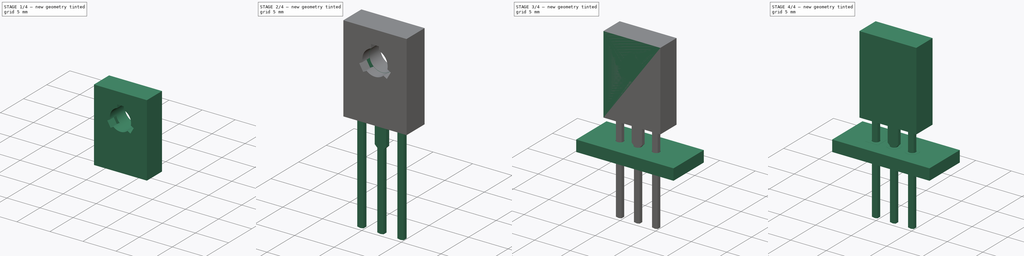
[diagram: build sequence overview — one tinted view per stage of 4, left to right]
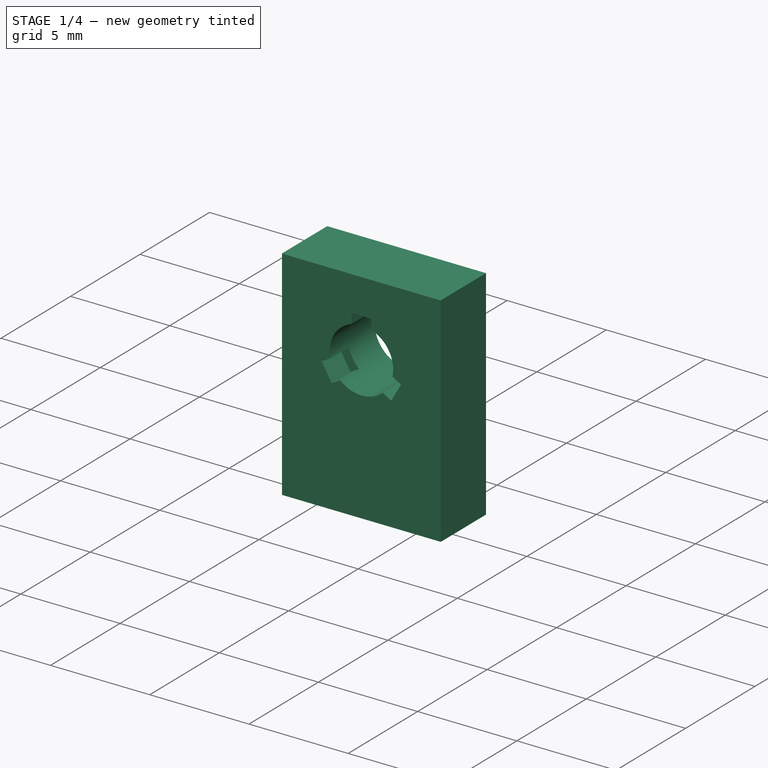
[diagram: stage 1 of 4 — iso view after this stage's code; geometry added in this stage tinted green]
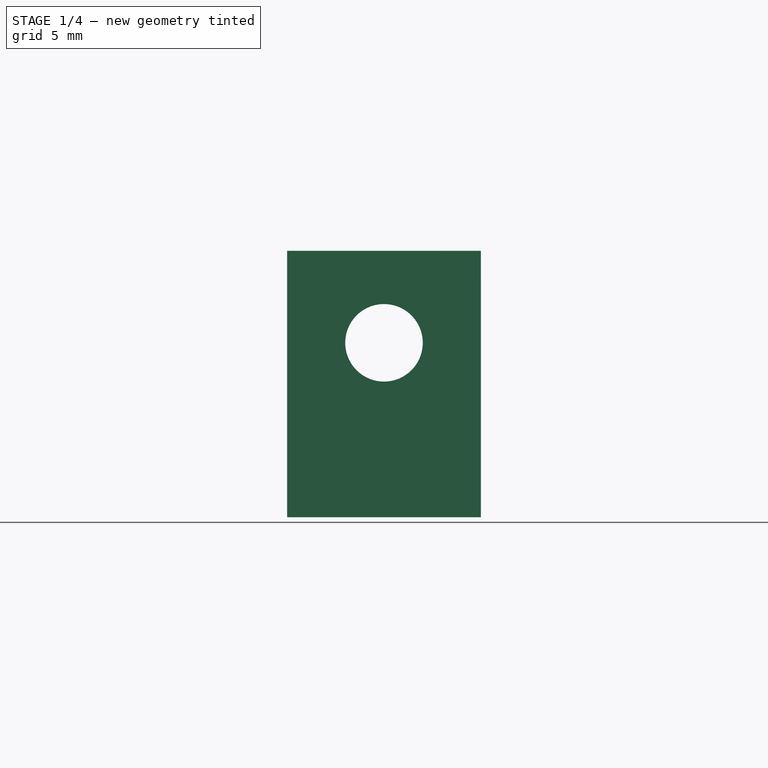
[diagram: stage 1 of 4 — front view after this stage's code; geometry added in this stage tinted green]
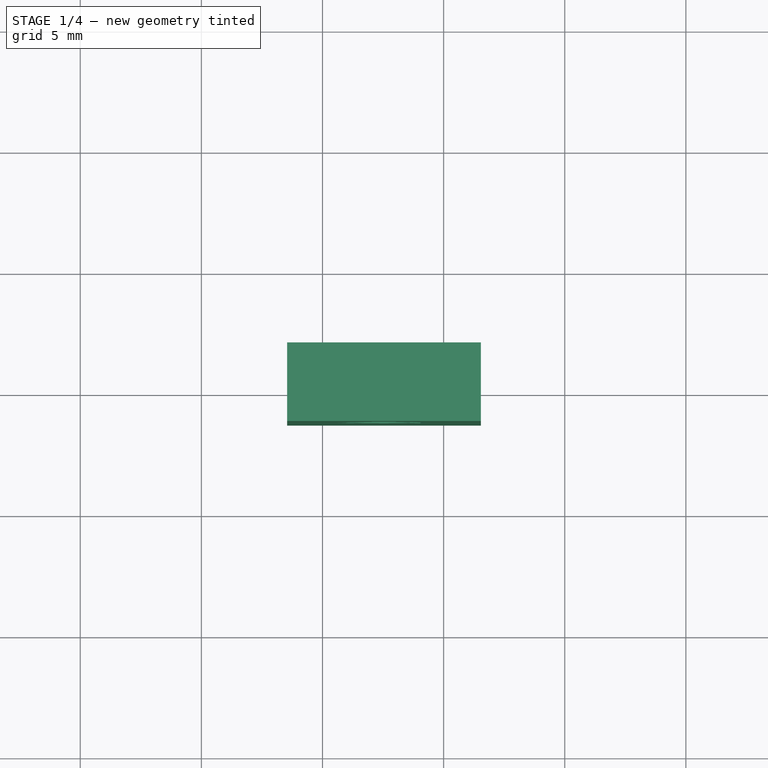
[diagram: stage 1 of 4 — top view after this stage's code; geometry added in this stage tinted green]
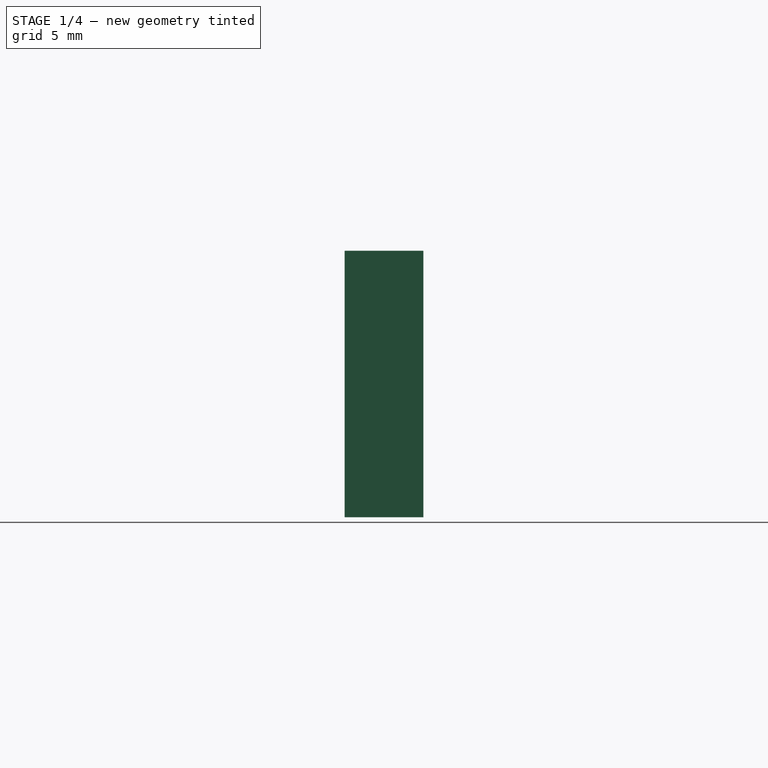
[diagram: stage 1 of 4 — right view after this stage's code; geometry added in this stage tinted green]
FCSTD DOCUMENT  (FreeCAD 0.16R6712 (Git))
Label: TO-126-3_Vertical
License: All rights reserved
LicenseURL: http://en.wikipedia.org/wiki/All_rights_reserved
objects: Part::FeaturePython×7, Sketcher::SketchObject×6, PartDesign::Pad×4, PartDesign::Pocket×3, App::DocumentObjectGroup×1, Part::MultiFuse×1
note: 28 computed .brp shape members not serialized (recipe doc carries the construction recipe); baked Part::Feature solids carry a one-line shape summary decoded from their .brp

FEATURE [Sketcher::SketchObject] Sketch001
  Placement = pos=(2.54,0,0) rot=(0.57735,0.57735,0.57735;2.0944rad)
  expr: Constraints[19] = 3
  expr: Constraints[13] = 2
  sketch-geometry (7):
    g0: LineSegment StartX=0 StartY=3 StartZ=0 EndX=-1.25 EndY=3 EndZ=0
    g1: LineSegment StartX=-1.25 StartY=3 StartZ=0 EndX=-1.25 EndY=13.99 EndZ=0
    g2: LineSegment StartX=-1.25 StartY=13.99 StartZ=0 EndX=-1.24 EndY=14 EndZ=0
    g3: LineSegment StartX=-1.24 StartY=14 StartZ=0 EndX=2 EndY=14 EndZ=0
    g4: LineSegment StartX=2 StartY=14 StartZ=0 EndX=2 EndY=3 EndZ=0
    g5: LineSegment StartX=2 StartY=3 StartZ=0 EndX=0 EndY=3 EndZ=0
    g6: LineSegment [constr] StartX=-1.25 StartY=3 StartZ=0 EndX=2 EndY=3 EndZ=0
  constraints (20):
    c: PointOnObject(g0,g-2)
    c: Coincident(g1,g0)
    c: Vertical(g1)
    c: Coincident(g2,g1)
    c: Horizontal(g3)
    c: Coincident(g4,g3)
    c: Vertical(g4)
    c: Coincident(g5,g4)
    c: Coincident(g5,g0)
    c: Coincident(g6,g0)
    c: Coincident(g6,g4)
    c: Horizontal(g6)
    c: Angle(g1,g2) = 2.35619
    c: DistanceX(g0,g4) = 2
    c: DistanceX(g1,g3) = 3.25
    c: DistanceY(g0,g4) = 0
    c: DistanceY(g0,g3) = 11
    c: Coincident(g2,g3)
    c: DistanceX(g1,g2) = 0.01
    c: DistanceY(g-1,g0) = 3
FEATURE [PartDesign::Pad] Pad001
  Length = 8
  Length2 = 100
  Midplane = true
  Placement = pos=(2.54,0,0) rot=(0.57735,0.57735,0.57735;2.0944rad)
  Sketch = -> Sketch001
  Type = 0
  expr: Length = 8
FEATURE [App::DocumentObjectGroup] TO_126_3_Vertical_fp
  Group = -> [FCrtYd_lines,FFab_lines,Filk_lines,TopPads,BotPads,THPs,newPCB]
FEATURE [Sketcher::SketchObject] Sketch003
  ExternalGeometry = -> [Pad001]
  Placement = pos=(2.54,-1.25,0) rot=(0.57735,0.57735,-0.57735;2.0944rad)
  Support = -> Pad001 [Face2]
  expr: Constraints[34] = 180 - 360 / 3
  sketch-geometry (13):
    g0: LineSegment StartX=-12.2199 StartY=0.5 StartZ=0 EndX=-12.2199 EndY=-0.5 EndZ=0
    g1: LineSegment StartX=-12.2199 StartY=-0.5 StartZ=0 EndX=-11.7199 EndY=-0.5 EndZ=0
    g2: LineSegment StartX=-12.2199 StartY=0.5 StartZ=0 EndX=-11.7199 EndY=0.5 EndZ=0
    g3: LineSegment StartX=-9.87308 StartY=1.56624 StartZ=0 EndX=-9.62308 EndY=1.99926 EndZ=0
    g4: LineSegment StartX=-9.62308 StartY=1.99926 StartZ=0 EndX=-8.75705 EndY=1.49926 EndZ=0
    g5: LineSegment StartX=-8.75705 StartY=1.49926 StartZ=0 EndX=-9.00705 EndY=1.06624 EndZ=0
    g6: LineSegment StartX=-9.00705 StartY=-1.06624 StartZ=0 EndX=-8.75705 EndY=-1.49926 EndZ=0
    g7: LineSegment StartX=-8.75705 StartY=-1.49926 StartZ=0 EndX=-9.62308 EndY=-1.99926 EndZ=0
    g8: LineSegment StartX=-9.62308 StartY=-1.99926 StartZ=0 EndX=-9.87308 EndY=-1.56624 EndZ=0
    g9: ArcOfCircle CenterX=-10.2 CenterY=0 CenterZ=0 NormalX=0 NormalY=0 NormalZ=1 Radius=1.6 StartAngle=1.36502 EndAngle=2.82377
    g10: ArcOfCircle CenterX=-10.2 CenterY=0 CenterZ=0 NormalX=0 NormalY=0 NormalZ=1 Radius=1.6 StartAngle=5.55381 EndAngle=7.01256
    g11: ArcOfCircle CenterX=-10.2 CenterY=0 CenterZ=0 NormalX=0 NormalY=0 NormalZ=1 Radius=1.6 StartAngle=3.45942 EndAngle=4.91816
    g12: LineSegment [constr] StartX=-10.2 StartY=0 StartZ=0 EndX=-13.99 EndY=0 EndZ=0
  constraints (40):
    c: Vertical(g0)
    c: Coincident(g1,g0)
    c: Coincident(g2,g0)
    c: Horizontal(g2)
    c: Coincident(g4,g3)
    c: Coincident(g5,g4)
    c: Coincident(g7,g6)
    c: Coincident(g7,g8)
    c: Perpendicular(g8,g7)
    c: Parallel(g6,g8)
    c: Parallel(g5,g3)
    c: Parallel(g2,g1)
    c: Equal(g4,g0)
    c: Equal(g0,g7)
    c: Perpendicular(g4,g3)
    c: Equal(g5,g6)
    c: Equal(g6,g2)
    c: Coincident(g9,g2)
    c: Coincident(g9,g3)
    c: Coincident(g10,g9)
    c: Coincident(g10,g5)
    c: Coincident(g10,g6)
    c: Coincident(g11,g9)
    c: Coincident(g11,g8)
    c: Coincident(g11,g1)
    c: Equal(g11,g9)
    c: Equal(g9,g10)
    c: Radius(g9) = 1.6
    c: Coincident(g12,g9)
    c: Horizontal(g12)
    c: DistanceX(g12,g12) = 3.79
    c: DistanceY(g0,g0) = 1
    c: DistanceX(g2,g2) = 0.5
    c: Angle(g0,g4) = 1.0472
    c: Angle(g7,g0) = 1.0472
    c: Equal(g3,g5)
    c: Equal(g5,g8)
    c: Equal(g8,g6)
    c: Equal(g6,g1)
    c: Symmetric(g-3,g-3,g12)
FEATURE [PartDesign::Pocket] Pocket
  Length = 1.35
  Placement = pos=(2.54,0,0) rot=(0.57735,0.57735,0.57735;2.0944rad)
  Sketch = -> Sketch003
  Type = 0
FEATURE [Sketcher::SketchObject] Sketch004
  ExternalGeometry = -> [Pocket]
  Placement = pos=(2.54,-1.25,0) rot=(-0.57735,-0.57735,0.57735;4.18879rad)
  Support = -> Pocket [Face3]
  sketch-geometry (1):
    g0: Circle CenterX=-10.2 CenterY=0 CenterZ=0 NormalX=0 NormalY=0 NormalZ=1 Radius=1.6
  constraints (2):
    c: Coincident(g0,g-3)
    c: PointOnObject(g-3,g0)
FEATURE [PartDesign::Pocket] Pocket001
  Length = 5
  Placement = pos=(2.54,0,0) rot=(0.57735,0.57735,0.57735;2.0944rad)
  Sketch = -> Sketch004
  Type = 1
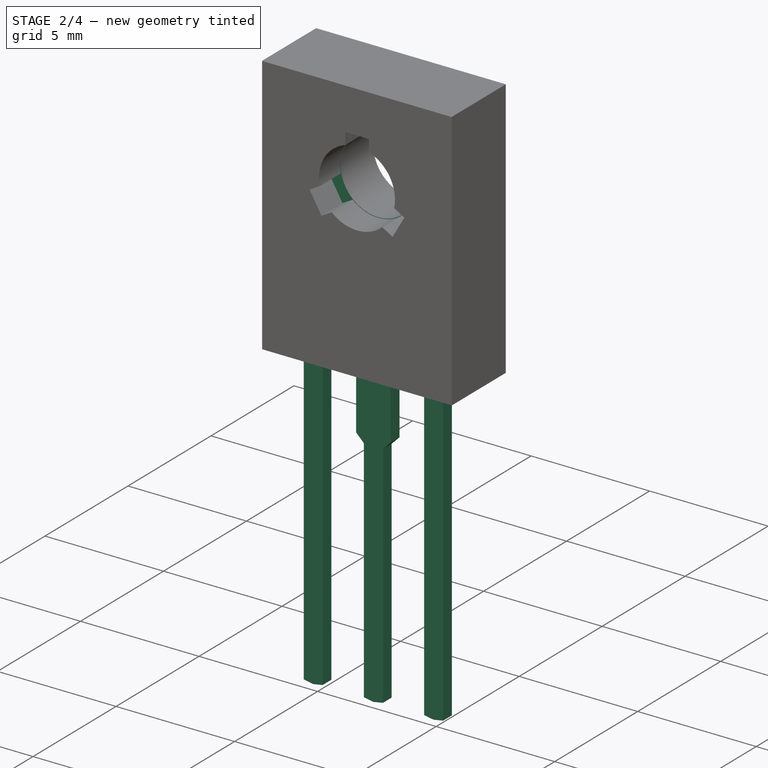
[diagram: stage 2 of 4 — iso view after this stage's code; geometry added in this stage tinted green]
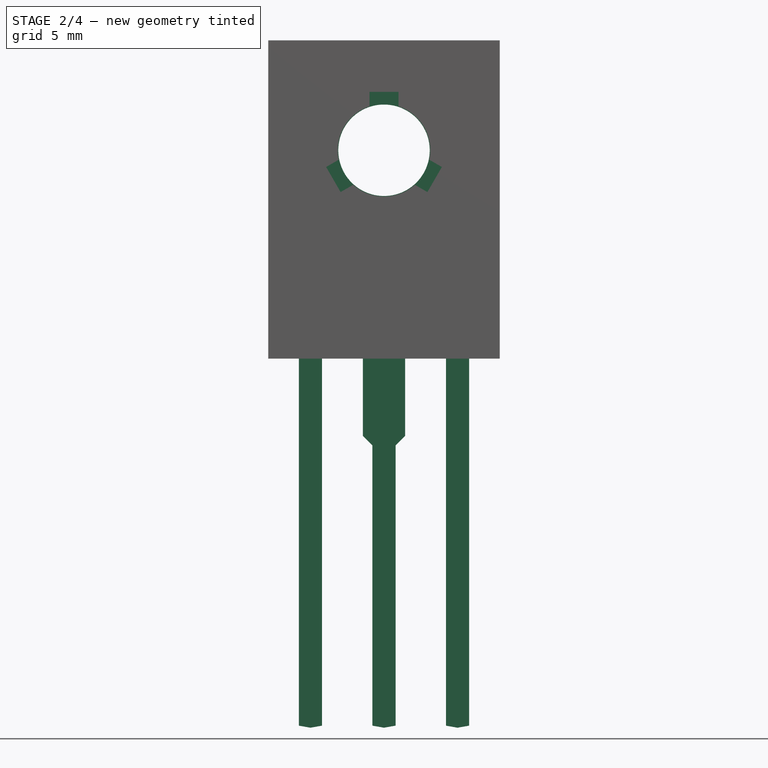
[diagram: stage 2 of 4 — front view after this stage's code; geometry added in this stage tinted green]
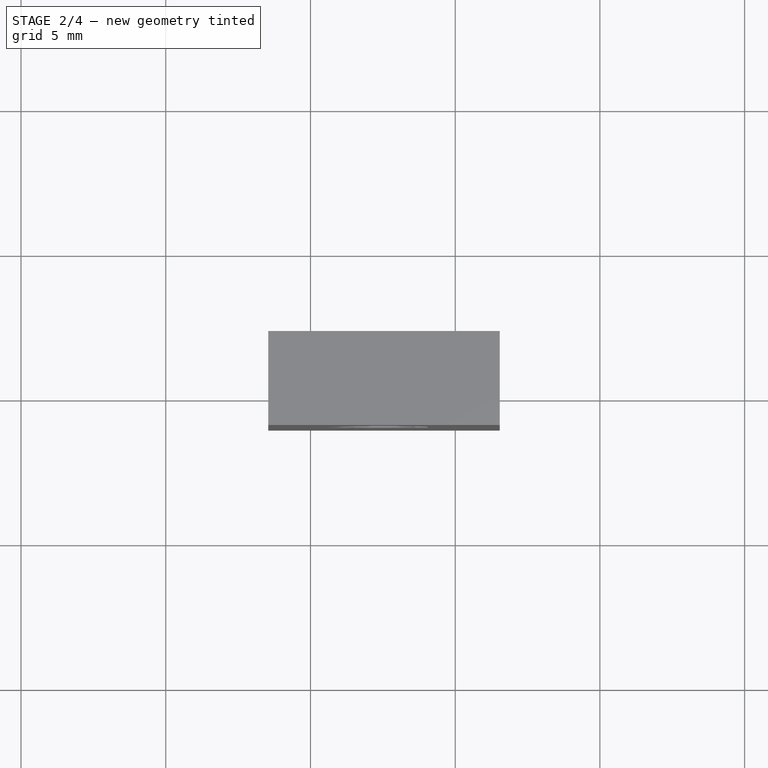
[diagram: stage 2 of 4 — top view after this stage's code; geometry added in this stage tinted green]
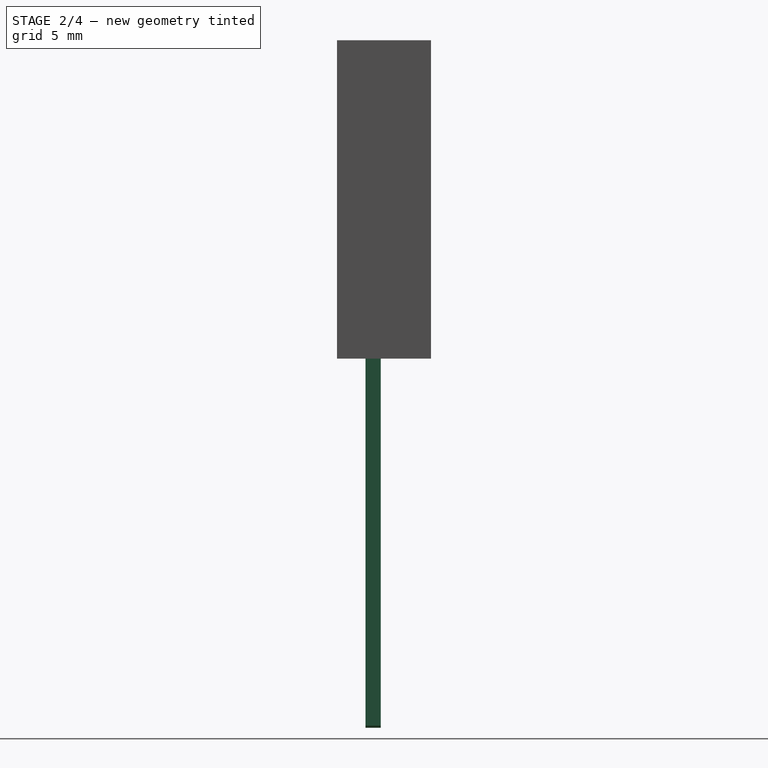
[diagram: stage 2 of 4 — right view after this stage's code; geometry added in this stage tinted green]
FEATURE [Sketcher::SketchObject] Sketch
  Placement = pos=(0,0,0) rot=(1,0,0;1.5708rad)
  expr: Constraints[3] = 0.8
  expr: Constraints[31] = 3.23 + 0.5
  expr: Constraints[34] = (10.05 + 9.449999999999999) / 2
  sketch-geometry (49):
    g0: LineSegment [constr] StartX=-0.4 StartY=0 StartZ=0 EndX=0.4 EndY=0 EndZ=0
    g1: LineSegment [constr] StartX=-0.4 StartY=0.3025 StartZ=0 EndX=0.4 EndY=0.3025 EndZ=0
    g2: GeomPoint [constr] X=0 Y=0.3025 Z=0
    g3: LineSegment [constr] StartX=-0.4 StartY=-9.67947 StartZ=0 EndX=0.4 EndY=-9.67947 EndZ=0
    g4: GeomPoint [constr] X=0 Y=-9.67947 Z=0
    g5: LineSegment StartX=-0.4 StartY=0.3025 StartZ=0 EndX=-0.4 EndY=0 EndZ=0
    g6: LineSegment StartX=-0.4 StartY=0 StartZ=0 EndX=-0.4 EndY=-9.67947 EndZ=0
    g7: LineSegment StartX=-0.4 StartY=-9.67947 StartZ=0 EndX=0 EndY=-9.75 EndZ=0
    g8: LineSegment StartX=0 StartY=-9.75 StartZ=0 EndX=0.4 EndY=-9.67947 EndZ=0
    g9: LineSegment StartX=0.4 StartY=-9.67947 StartZ=0 EndX=0.4 EndY=0 EndZ=0
    g10: LineSegment StartX=0.4 StartY=0 StartZ=0 EndX=0.4 EndY=0.3025 EndZ=0
    g11: LineSegment StartX=0.4 StartY=0.3025 StartZ=0 EndX=0.4 EndY=3.73 EndZ=0
    g12: LineSegment StartX=0.4 StartY=3.73 StartZ=0 EndX=-0.4 EndY=3.73 EndZ=0
    g13: LineSegment StartX=-0.4 StartY=3.73 StartZ=0 EndX=-0.4 EndY=0.3025 EndZ=0
    g14: LineSegment [constr] StartX=0 StartY=-9.75 StartZ=0 EndX=0 EndY=0.3025 EndZ=0
    g15: LineSegment [constr] StartX=2.14 StartY=0 StartZ=0 EndX=2.94 EndY=0 EndZ=0
    g16: LineSegment [constr] StartX=1.81 StartY=0.33 StartZ=0 EndX=3.27 EndY=0.33 EndZ=0
    g17: GeomPoint [constr] X=2.54 Y=0.33 Z=0
    g18: LineSegment [constr] StartX=2.14 StartY=-9.67947 StartZ=0 EndX=2.94 EndY=-9.67947 EndZ=0
    g19: GeomPoint [constr] X=2.54 Y=-9.67947 Z=0
    g20: LineSegment StartX=1.81 StartY=0.33 StartZ=0 EndX=2.14 EndY=0 EndZ=0
    g21: LineSegment StartX=2.14 StartY=0 StartZ=0 EndX=2.14 EndY=-9.67947 EndZ=0
    g22: LineSegment StartX=2.14 StartY=-9.67947 StartZ=0 EndX=2.54 EndY=-9.75 EndZ=0
    g23: LineSegment StartX=2.54 StartY=-9.75 StartZ=0 EndX=2.94 EndY=-9.67947 EndZ=0
    g24: LineSegment StartX=2.94 StartY=-9.67947 StartZ=0 EndX=2.94 EndY=0 EndZ=0
    g25: LineSegment StartX=2.94 StartY=0 StartZ=0 EndX=3.27 EndY=0.33 EndZ=0
    g26: LineSegment StartX=3.27 StartY=0.33 StartZ=0 EndX=3.27 EndY=3.73 EndZ=0
    g27: LineSegment StartX=3.27 StartY=3.73 StartZ=0 EndX=1.81 EndY=3.73 EndZ=0
    g28: LineSegment StartX=1.81 StartY=3.73 StartZ=0 EndX=1.81 EndY=0.33 EndZ=0
    g29: LineSegment [constr] StartX=2.54 StartY=-9.75 StartZ=0 EndX=2.54 EndY=0.33 EndZ=0
    g30: LineSegment [constr] StartX=4.68 StartY=0 StartZ=0 EndX=5.48 EndY=0 EndZ=0
    g31: LineSegment [constr] StartX=4.68 StartY=0.3025 StartZ=0 EndX=5.48 EndY=0.3025 EndZ=0
    g32: GeomPoint [constr] X=5.08 Y=0.3025 Z=0
    g33: LineSegment [constr] StartX=4.68 StartY=-9.67947 StartZ=0 EndX=5.48 EndY=-9.67947 EndZ=0
    g34: GeomPoint [constr] X=5.08 Y=-9.67947 Z=0
    g35: LineSegment StartX=4.68 StartY=0.3025 StartZ=0 EndX=4.68 EndY=0 EndZ=0
    g36: LineSegment StartX=4.68 StartY=0 StartZ=0 EndX=4.68 EndY=-9.67947 EndZ=0
    g37: LineSegment StartX=4.68 StartY=-9.67947 StartZ=0 EndX=5.08 EndY=-9.75 EndZ=0
    g38: LineSegment StartX=5.08 StartY=-9.75 StartZ=0 EndX=5.48 EndY=-9.67947 EndZ=0
    g39: LineSegment StartX=5.48 StartY=-9.67947 StartZ=0 EndX=5.48 EndY=0 EndZ=0
    g40: LineSegment StartX=5.48 StartY=0 StartZ=0 EndX=5.48 EndY=0.3025 EndZ=0
    g41: LineSegment StartX=5.48 StartY=0.3025 StartZ=0 EndX=5.48 EndY=3.73 EndZ=0
    g42: LineSegment StartX=5.48 StartY=3.73 StartZ=0 EndX=4.68 EndY=3.73 EndZ=0
    g43: LineSegment StartX=4.68 StartY=3.73 StartZ=0 EndX=4.68 EndY=0.3025 EndZ=0
    g44: LineSegment [constr] StartX=5.08 StartY=-9.75 StartZ=0 EndX=5.08 EndY=0.3025 EndZ=0
    g45: GeomPoint [constr] X=2.54 Y=0 Z=0
    g46: GeomPoint [constr] X=5.08 Y=0 Z=0
    g47: LineSegment [constr] StartX=0 StartY=-9.75 StartZ=0 EndX=5.08 EndY=-9.75 EndZ=0
    g48: LineSegment [constr] StartX=-0.4 StartY=3.73 StartZ=0 EndX=4.68 EndY=3.73 EndZ=0
  constraints (116):
    c: PointOnObject(g0,g-1)
    c: Horizontal(g0)
    c: Symmetric(g0,g0,g-1)
    c: DistanceX(g0,g0) = 0.8
    c: Horizontal(g1)
    c: PointOnObject(g2,g-2)
    c: Symmetric(g1,g1,g2)
    c: Horizontal(g3)
    c: Equal(g0,g3) = 0.8
    c: PointOnObject(g4,g-2)
    c: Symmetric(g3,g3,g4)
    c: Coincident(g5,g1)
    c: Coincident(g5,g0)
    c: Coincident(g6,g0)
    c: Coincident(g6,g3)
    c: Coincident(g7,g3)
    c: Coincident(g8,g7)
    c: Coincident(g8,g3)
    c: PointOnObject(g7,g-2)
    c: Coincident(g9,g3)
    c: Coincident(g9,g0)
    c: Coincident(g10,g0)
    c: Coincident(g10,g1)
    c: Coincident(g11,g1)
    c: Vertical(g11)
    c: Coincident(g12,g11)
    c: Horizontal(g12)
    c: Coincident(g13,g12)
    c: Coincident(g13,g1)
    c: Vertical(g13)
    c: Angle(g9,g8) = 1.74533
    c: DistanceY(g-1,g12) = 3.73
    c: Coincident(g14,g7)
    c: Coincident(g14,g2)
    c: DistanceY(g7,g-1) = 9.75
    c: Horizontal(g15)
    c: Equal(g0,g15) = 0.8
    c: Horizontal(g16)
    c: Symmetric(g16,g16,g17)
    c: Horizontal(g18)
    c: Equal(g15,g18) = 0.8
    c: Symmetric(g18,g18,g19)
    c: Coincident(g20,g16)
    c: Coincident(g20,g15)
    c: Coincident(g21,g15)
    c: Coincident(g21,g18)
    c: Coincident(g22,g18)
    c: Coincident(g23,g22)
    c: Coincident(g23,g18)
    c: Coincident(g24,g18)
    c: Coincident(g24,g15)
    c: Coincident(g25,g24)
    c: Coincident(g25,g16)
    c: Coincident(g26,g16)
    c: Vertical(g26)
    c: Coincident(g27,g26)
    c: Horizontal(g27)
    c: Coincident(g28,g27)
    c: Coincident(g28,g16)
    c: Vertical(g28)
    c: Angle(g20,g28) = 2.35619
    c: Angle(g24,g23) = 1.74533
    c: Coincident(g29,g22)
    c: Coincident(g29,g17)
    c: Horizontal(g30)
    c: Equal(g0,g30) = 0.8
    c: Horizontal(g31)
    c: Symmetric(g31,g31,g32)
    c: Equal(g1,g31) = 1.355
    c: Horizontal(g33)
    c: Equal(g30,g33) = 0.8
    c: Symmetric(g33,g33,g34)
    c: Coincident(g35,g31)
    c: Coincident(g35,g30)
    c: Coincident(g36,g30)
    c: Coincident(g36,g33)
    c: Coincident(g37,g33)
    c: Coincident(g38,g37)
    c: Coincident(g38,g33)
    c: Coincident(g39,g33)
    c: Coincident(g39,g30)
    c: Coincident(g40,g30)
    c: Coincident(g40,g31)
    c: Coincident(g41,g31)
    c: Vertical(g41)
    c: Coincident(g42,g41)
    c: Horizontal(g42)
    c: Coincident(g43,g42)
    c: Coincident(g43,g31)
    c: Vertical(g43)
    c: Angle(g39,g38) = 1.74533
    c: Coincident(g44,g37)
    c: Coincident(g44,g32)
    c: PointOnObject(g15,g-1)
    c: PointOnObject(g45,g29)
    c: Symmetric(g15,g15,g45)
    c: Vertical(g29)
    c: Vertical(g44)
    c: PointOnObject(g46,g44)
    c: Symmetric(g30,g30,g46)
    c: PointOnObject(g19,g29)
    c: PointOnObject(g34,g44)
    c: DistanceX(g7,g22) = 2.54
    c: DistanceX(g22,g37) = 2.54
    c: Coincident(g47,g7)
    c: Coincident(g47,g37)
    c: Horizontal(g47)
    c: PointOnObject(g22,g47)
    c: PointOnObject(g30,g-1)
    c: Coincident(g48,g12)
    c: Coincident(g48,g42)
    c: Horizontal(g48)
    c: PointOnObject(g27,g48)
    c: Equal(g42,g12)
    c: Equal(g12,g3)
    c: Equal(g16,g27)
FEATURE [PartDesign::Pad] Pad
  Length = 0.525
  Length2 = 100
  Midplane = true
  Placement = pos=(0,0,0) rot=(1,0,0;1.5708rad)
  Reversed = true
  Sketch = -> Sketch
  Type = 0
  expr: Length = (0.6 + 0.45) / 2
FEATURE [Sketcher::SketchObject] Sketch005
  Placement = pos=(0,1,0) rot=(-1,0,0;4.71239rad)
  sketch-geometry (6):
    g0: LineSegment StartX=-1.16 StartY=13.6 StartZ=0 EndX=6.24 EndY=13.6 EndZ=0
    g1: LineSegment StartX=6.24 StartY=13.6 StartZ=0 EndX=6.24 EndY=3.2 EndZ=0
    g2: LineSegment StartX=6.24 StartY=3.2 StartZ=0 EndX=-1.16 EndY=3.2 EndZ=0
    g3: LineSegment StartX=-1.16 StartY=3.2 StartZ=0 EndX=-1.16 EndY=13.6 EndZ=0
    g4: Circle CenterX=2.54 CenterY=10.2 CenterZ=0 NormalX=0 NormalY=0 NormalZ=1 Radius=1.58
    g5: LineSegment [constr] StartX=2.54 StartY=10.2 StartZ=0 EndX=2.54 EndY=13.6 EndZ=0
  constraints (17):
    c: Coincident(g0,g1)
    c: Coincident(g1,g2)
    c: Coincident(g2,g3)
    c: Coincident(g3,g0)
    c: Horizontal(g0)
    c: Horizontal(g2)
    c: Vertical(g1)
    c: Vertical(g3)
    c: DistanceX(g-1,g4) = 2.54
    c: Radius(g4) = 1.58
    c: DistanceY(g-1,g4) = 10.2
    c: Coincident(g5,g4)
    c: Vertical(g5)
    c: Symmetric(g0,g0,g5)
    c: DistanceY(g1,g1) = 10.4
    c: DistanceX(g0,g0) = 7.4
    c: DistanceY(g5,g5) = 3.4
FEATURE [PartDesign::Pad] Pad003
  Length = 1.97
  Length2 = 100
  Midplane = true
  Placement = pos=(0,1,0) rot=(-1,0,0;4.71239rad)
  Sketch = -> Sketch005
  Type = 0
FEATURE [Sketcher::SketchObject] Sketch006
  ExternalGeometry = -> [Pocket001]
  Placement = pos=(2.54,2,0) rot=(0.57735,0.57735,0.57735;4.18879rad)
  Support = -> Pocket001 [Face6]
  sketch-geometry (10):
    g0: LineSegment StartX=5.8 StartY=3 StartZ=0 EndX=12.2 EndY=3 EndZ=0
    g1: LineSegment StartX=13 StartY=2.2 StartZ=0 EndX=13 EndY=-2.2 EndZ=0
    g2: LineSegment StartX=12.2 StartY=-3 StartZ=0 EndX=5.8 EndY=-3 EndZ=0
    g3: LineSegment StartX=5 StartY=-2.2 StartZ=0 EndX=5 EndY=2.2 EndZ=0
    g4: GeomPoint [constr] X=5 Y=0 Z=0
    g5: ArcOfCircle CenterX=5.8 CenterY=2.2 CenterZ=0 NormalX=0 NormalY=0 NormalZ=1 Radius=0.8 StartAngle=1.5708 EndAngle=3.14159
    g6: ArcOfCircle CenterX=5.8 CenterY=-2.2 CenterZ=0 NormalX=0 NormalY=0 NormalZ=1 Radius=0.8 StartAngle=3.14159 EndAngle=4.71239
    g7: ArcOfCircle CenterX=12.2 CenterY=-2.2 CenterZ=0 NormalX=0 NormalY=0 NormalZ=1 Radius=0.8 StartAngle=4.71239 EndAngle=6.28319
    g8: ArcOfCircle CenterX=12.2 CenterY=2.2 CenterZ=0 NormalX=0 NormalY=0 NormalZ=1 Radius=0.8 StartAngle=0 EndAngle=1.5708
    g9: Circle CenterX=10.2 CenterY=0 CenterZ=0 NormalX=0 NormalY=0 NormalZ=1 Radius=2
  constraints (23):
    c: Horizontal(g0)
    c: Horizontal(g2)
    c: Vertical(g1)
    c: Vertical(g3)
    c: PointOnObject(g4,g-1)
    c: Tangent(g3,g5) = 1.5708
    c: Tangent(g0,g5) = 1.5708
    c: Tangent(g3,g6) = 1.5708
    c: Tangent(g2,g6) = 1.5708
    c: Tangent(g2,g7) = 1.5708
    c: Tangent(g1,g7) = 1.5708
    c: Tangent(g0,g8) = 1.5708
    c: Tangent(g1,g8) = 1.5708
    c: Coincident(g9,g-3)
    c: Radius(g9) = 2
    c: Equal(g5,g8)
    c: Equal(g8,g7)
    c: Equal(g7,g6)
    c: Symmetric(g3,g3,g4)
    c: DistanceX(g-5,g3) = 2
    c: DistanceX(g1,g-4) = 1
    c: DistanceY(g0,g-4) = 1
    c: Radius(g5) = 0.8
FEATURE [PartDesign::Pocket] Pocket002
  Length = 0.02
  Placement = pos=(2.54,0,0) rot=(0.57735,0.57735,0.57735;2.0944rad)
  Sketch = -> Sketch006
  Type = 0
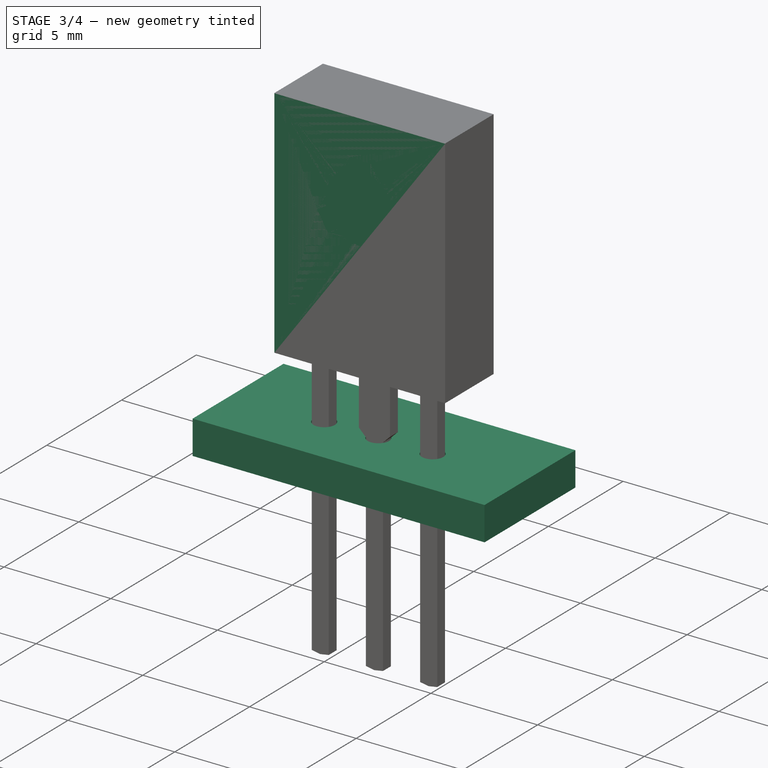
[diagram: stage 3 of 4 — iso view after this stage's code; geometry added in this stage tinted green]
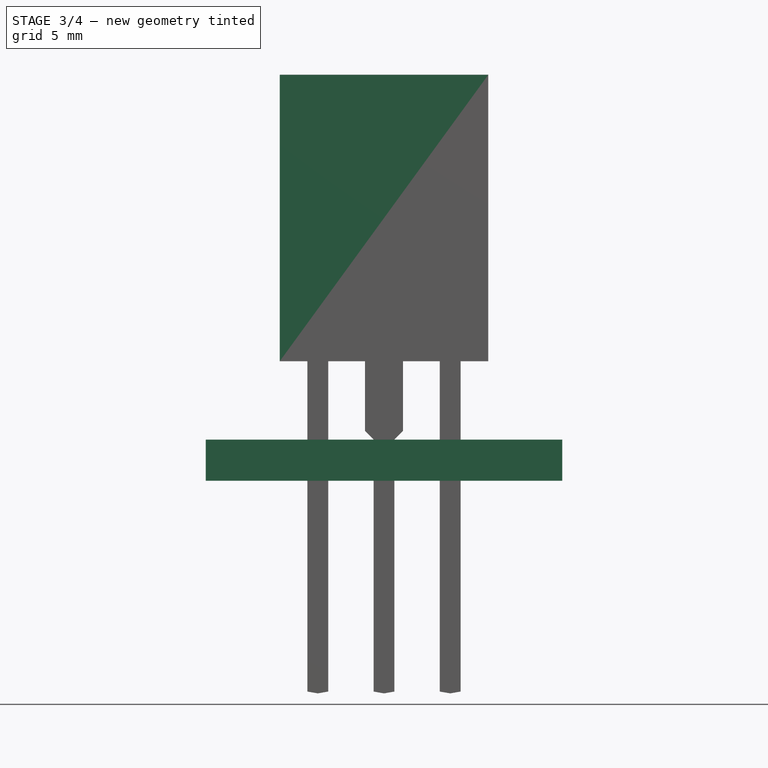
[diagram: stage 3 of 4 — front view after this stage's code; geometry added in this stage tinted green]
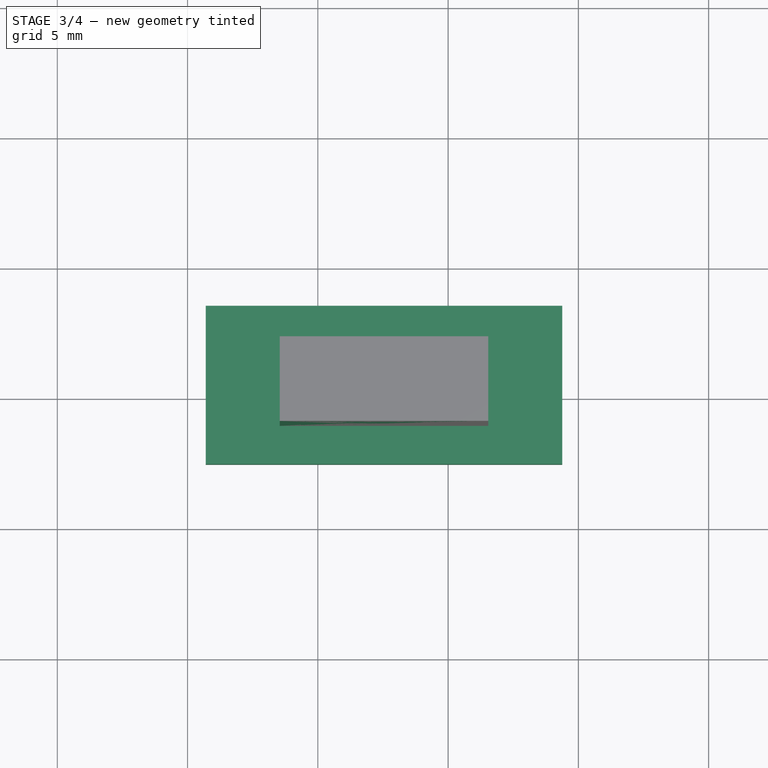
[diagram: stage 3 of 4 — top view after this stage's code; geometry added in this stage tinted green]
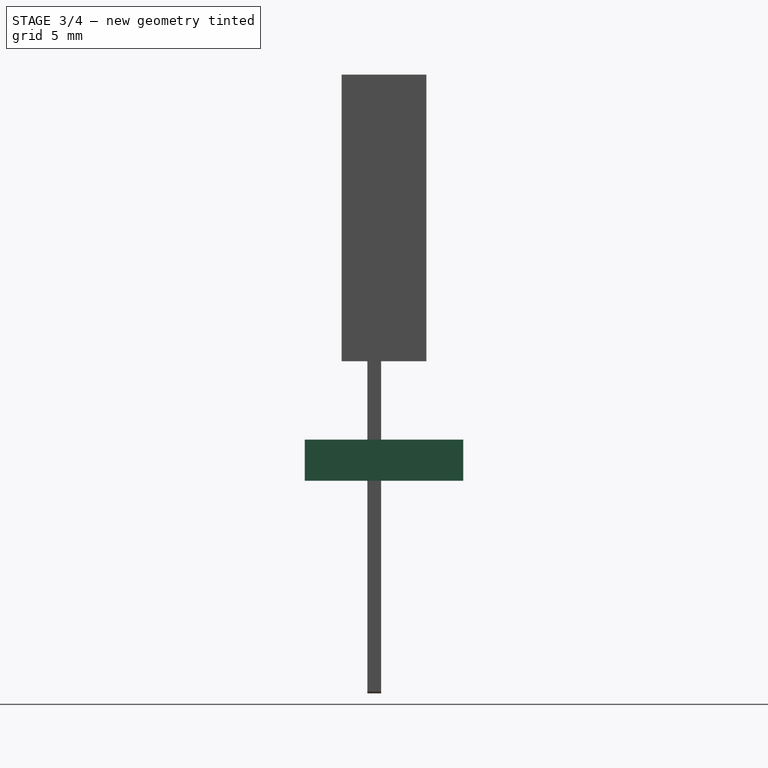
[diagram: stage 3 of 4 — right view after this stage's code; geometry added in this stage tinted green]
FEATURE [Part::FeaturePython] newPCB  label="Pcb"  # a2plus imported part (geometry in sourceFile) (typed FeaturePython)
  fixedPosition = true
FEATURE [PartDesign::Pad] Pad002
  Length = 8
  Length2 = 100
  Midplane = true
  Placement = pos=(2.54,0,0) rot=(0.57735,0.57735,0.57735;2.0944rad)
  Sketch = -> Sketch001
  Type = 0
  expr: Length = 8
FEATURE [Part::MultiFuse] Pad_mp_cp  label="TO-126-3_Vertical"
  Shapes = -> [Pad,Pad003,Pocket002]
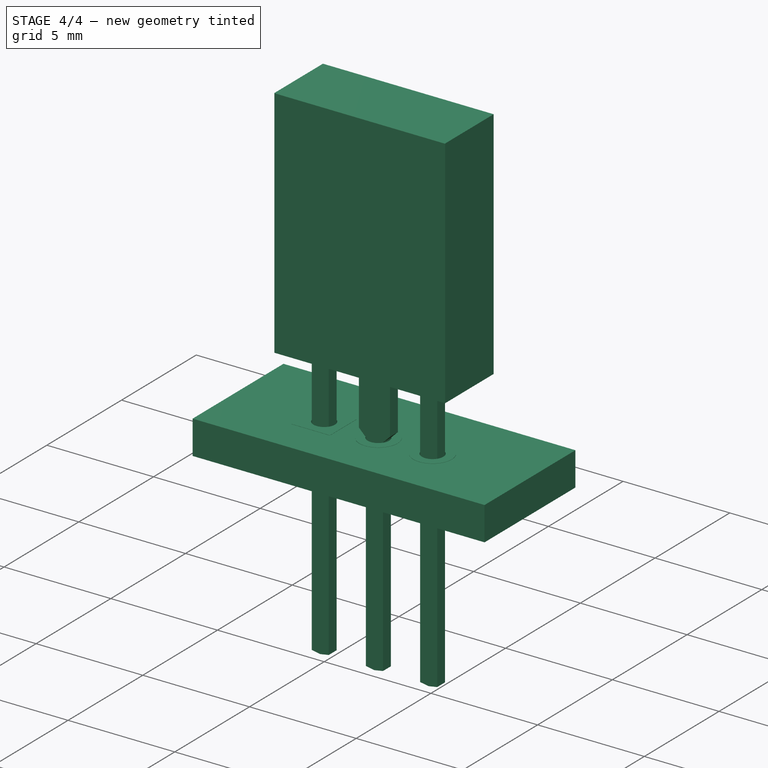
[diagram: stage 4 of 4 — iso view after this stage's code; geometry added in this stage tinted green]
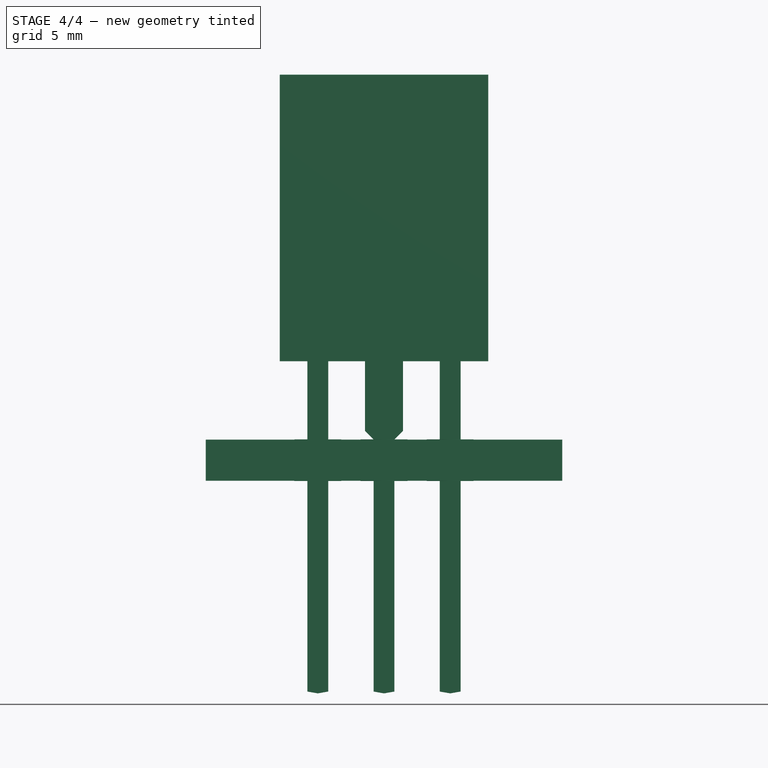
[diagram: stage 4 of 4 — front view after this stage's code; geometry added in this stage tinted green]
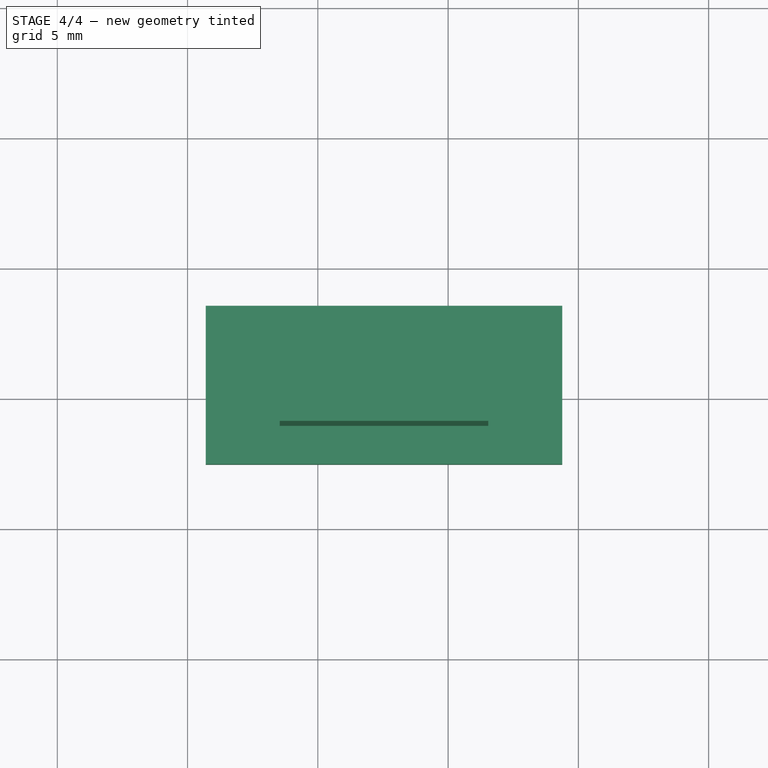
[diagram: stage 4 of 4 — top view after this stage's code; geometry added in this stage tinted green]
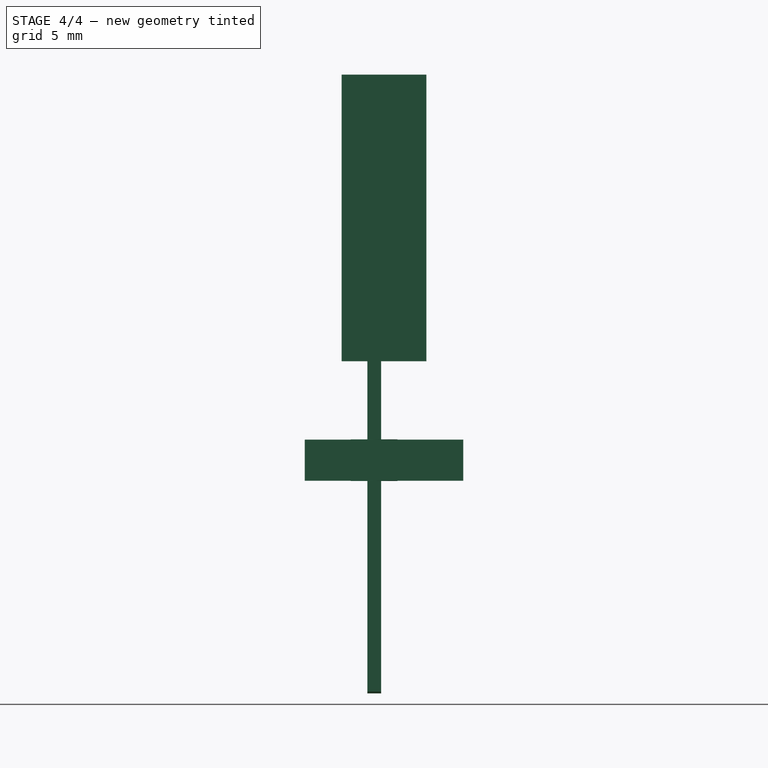
[diagram: stage 4 of 4 — right view after this stage's code; geometry added in this stage tinted green]
FEATURE [Part::FeaturePython] FCrtYd_lines  label="FCrtYd"  # a2plus imported part (geometry in sourceFile) (typed FeaturePython)
  fixedPosition = true
FEATURE [Part::FeaturePython] FFab_lines  label="FFab"  # a2plus imported part (geometry in sourceFile) (typed FeaturePython)
  fixedPosition = true
FEATURE [Part::FeaturePython] Filk_lines  label="FrontSilk"  # a2plus imported part (geometry in sourceFile) (typed FeaturePython)
  fixedPosition = true
FEATURE [Part::FeaturePython] TopPads  # a2plus imported part (geometry in sourceFile) (typed FeaturePython)
  fixedPosition = true
FEATURE [Part::FeaturePython] BotPads  # a2plus imported part (geometry in sourceFile) (typed FeaturePython)
  fixedPosition = true
FEATURE [Part::FeaturePython] THPs  label="PTHs"  # a2plus imported part (geometry in sourceFile) (typed FeaturePython)
  fixedPosition = true
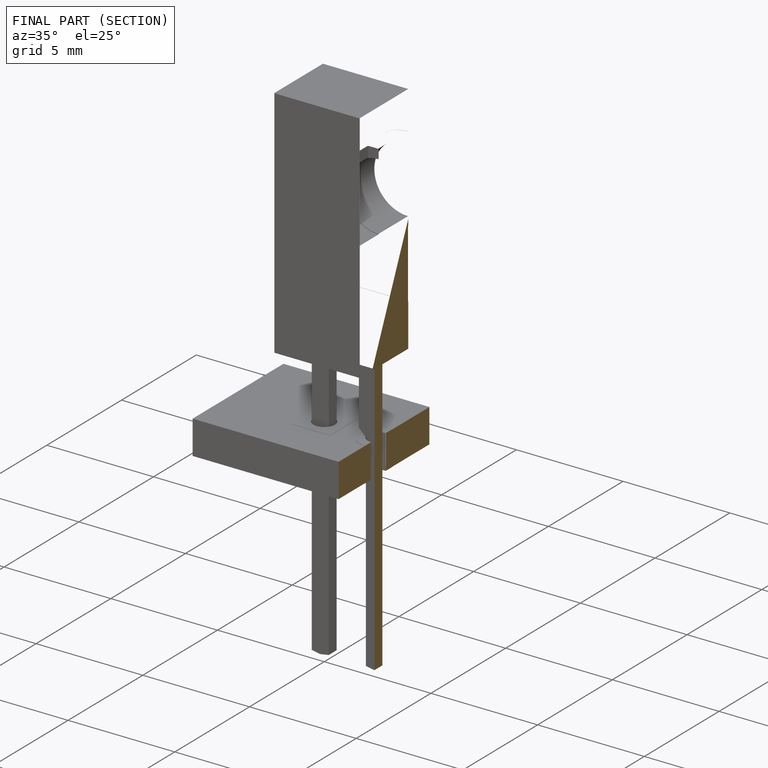
[diagram: finished part — half-section view (interior)]
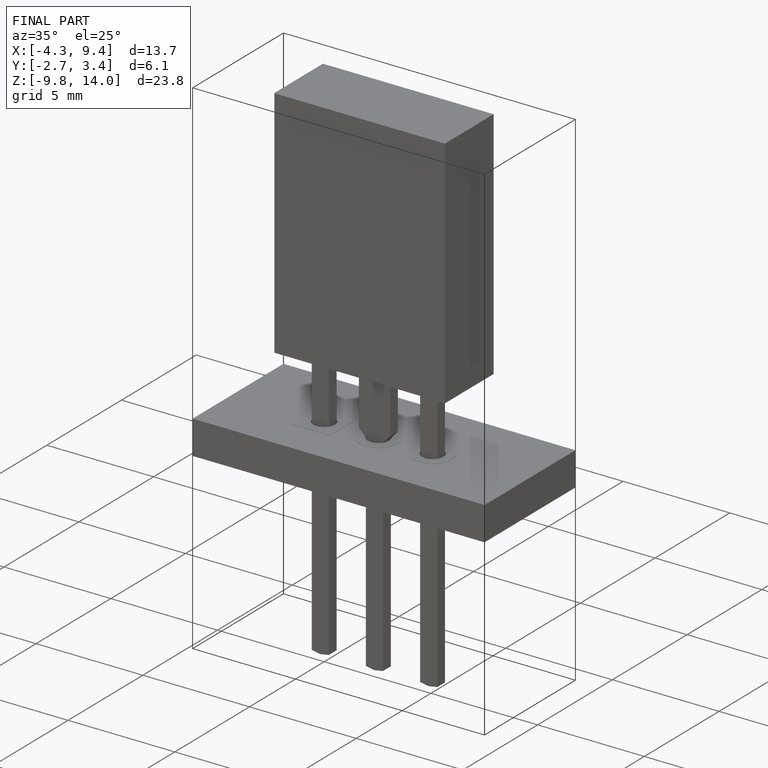
[diagram: finished part — iso view with bounding-box wireframe]
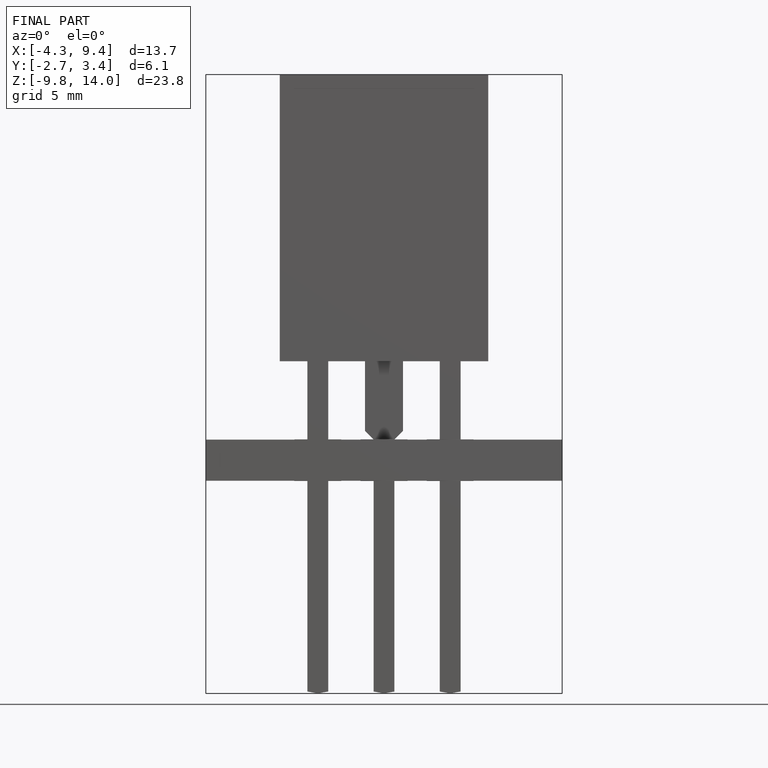
[diagram: finished part — front view with bounding-box wireframe]
